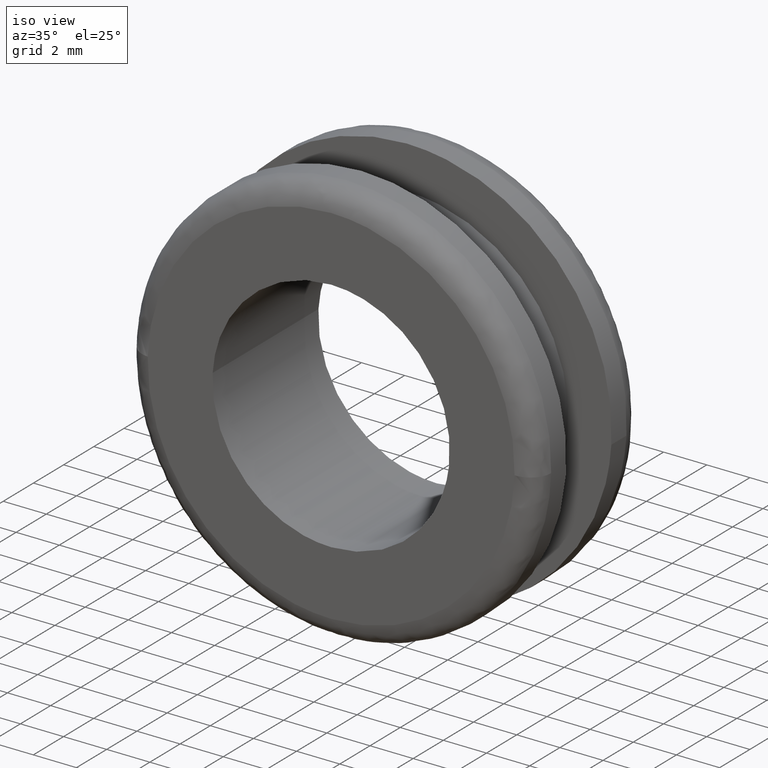
[diagram: clean part render]
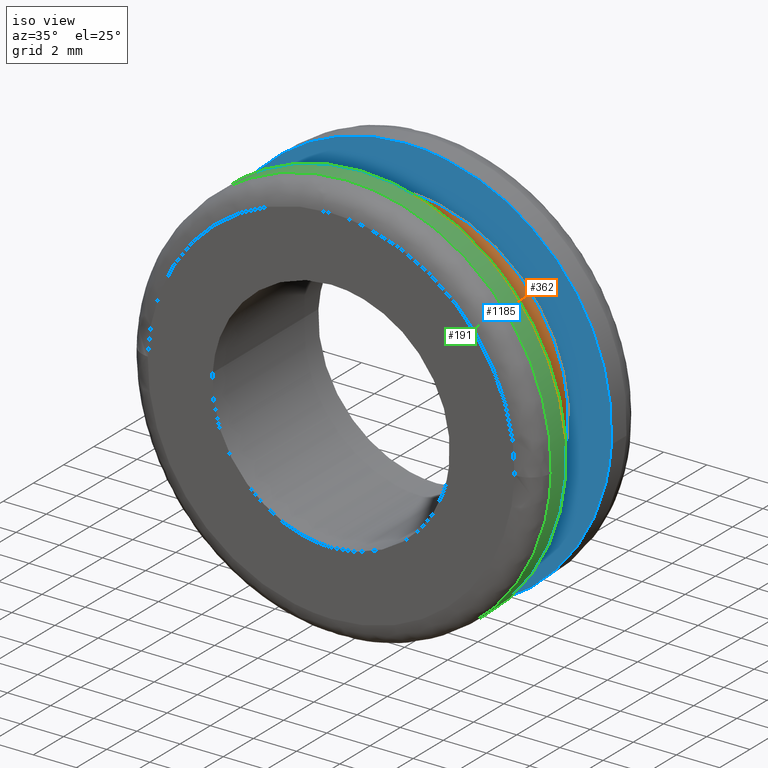
[diagram: same view with three faces highlighted in distinct colors, each labeled with its STEP entity id]
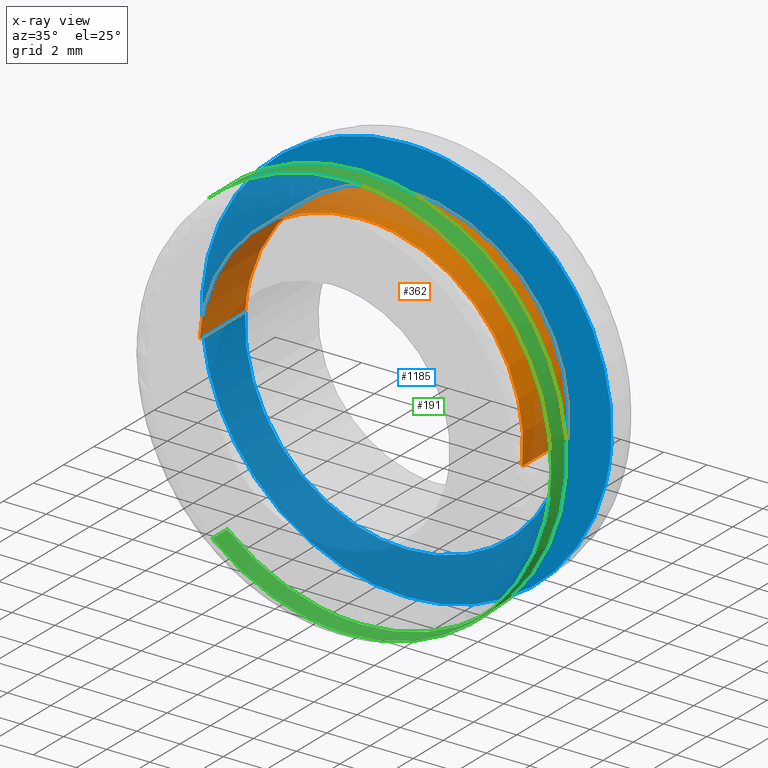
[diagram: x-ray of the same camera — body ghosted, the three highlighted faces saturated]
A machine part, iso view with three faces highlighted in distinct colors.
The next image is the same camera in x-ray (body ghosted, the three faces saturated) — at least one of them is partly hidden behind the body in this view.
Their STEP definitions:

[orange] entity #362 — the highlighted face is a freeform B-spline surface patch.
#260=CARTESIAN_POINT('',(7.447571447727496,5.075000000000002,-0.885256759925689));
#261=CARTESIAN_POINT('',(7.472907115864541,5.075000000000001,-0.672110464784833));
#262=CARTESIAN_POINT('',(7.486010988164000,5.075000000000001,-0.457864046511427));
#263=CARTESIAN_POINT('',(7.943875034675429,5.075000000000002,7.028146941652573));
#264=CARTESIAN_POINT('',(0.457864046511427,5.075000000000001,7.486010988164000));
#265=CARTESIAN_POINT('',(-7.028146941652573,5.075000000000002,7.943875034675429));
#266=CARTESIAN_POINT('',(-7.486010988164000,5.075000000000001,0.457864046511427));
#267=CARTESIAN_POINT('',(7.447571447727496,1.923125000000000,-0.885256759925689));
#268=CARTESIAN_POINT('',(7.472907115864541,1.923125000000000,-0.672110464784833));
#269=CARTESIAN_POINT('',(7.486010988164000,1.923125000000000,-0.457864046511427));
#270=CARTESIAN_POINT('',(7.943875034675429,1.923125000000000,7.028146941652573));
#271=CARTESIAN_POINT('',(0.457864046511427,1.923125000000000,7.486010988164000));
#272=CARTESIAN_POINT('',(-7.028146941652573,1.923125000000000,7.943875034675429));
#273=CARTESIAN_POINT('',(-7.486010988164000,1.923125000000000,0.457864046511427));
#281=(BOUNDED_SURFACE()B_SPLINE_SURFACE(2,1,((#260,#267),(#261,#268),(#262,#269),(#263,#270),(#264,#271),(#265,#272),(#266,#273)),.UNSPECIFIED.,.F.,.F.,.U.)B_SPLINE_SURFACE_WITH_KNOTS((3,2,2,3),(2,2),(0.0,0.497056274847715,12.923463146040559,25.349870017233410),(0.0,3.151875000000002),.UNSPECIFIED.)GEOMETRIC_REPRESENTATION_ITEM()RATIONAL_B_SPLINE_SURFACE(((0.977505800795127,0.977505800795127),(0.988284271247462,0.988284271247462),(1.0,1.0),(0.707106781186548,0.707106781186548),(1.0,1.0),(0.707106781186548,0.707106781186548),(1.0,1.0)))REPRESENTATION_ITEM('')SURFACE());
#282=CARTESIAN_POINT('',(7.447572368186221,1.999999999999989,-0.885249016135149));
#283=VERTEX_POINT('',#282);
#284=CARTESIAN_POINT('',(0.0,2.0,7.500000000000000));
#285=VERTEX_POINT('',#284);
#286=CARTESIAN_POINT('',(7.447572368186221,1.999999999999989,-0.885249016135149));
#287=CARTESIAN_POINT('',(7.500000000000001,2.0,-0.444176984561478));
#288=CARTESIAN_POINT('',(7.500000000000000,2.0,-1.928755E-016));
#289=CARTESIAN_POINT('',(7.500000000000000,2.0,7.500000000000000));
#290=CARTESIAN_POINT('',(0.0,2.0,7.500000000000000));
#298=(BOUNDED_CURVE()B_SPLINE_CURVE(2,(#286,#287,#288,#289,#290),.UNSPECIFIED.,.F.,.U.)B_SPLINE_CURVE_WITH_KNOTS((3,2,3),(0.229562649240826,0.250000000000000,0.500000000000000),.UNSPECIFIED.)CURVE()GEOMETRIC_REPRESENTATION_ITEM()RATIONAL_B_SPLINE_CURVE((0.956027098616722,0.976056154208503,1.0,0.707106781186547,1.0))REPRESENTATION_ITEM(''));
#299=EDGE_CURVE('',#283,#285,#298,.T.);
#300=ORIENTED_EDGE('',*,*,#299,.F.);
#301=CARTESIAN_POINT('',(7.447572356828653,5.0,-0.885249111686859));
#302=VERTEX_POINT('',#301);
#303=CARTESIAN_POINT('',(7.447572356828653,5.0,-0.885249111686859));
#304=CARTESIAN_POINT('',(7.447572368186221,1.999999999999989,-0.885249016135149));
#305=QUASI_UNIFORM_CURVE('',1,(#303,#304),.UNSPECIFIED.,.F.,.U.);
#306=EDGE_CURVE('',#302,#283,#305,.T.);
#307=ORIENTED_EDGE('',*,*,#306,.F.);
#308=CARTESIAN_POINT('',(0.0,5.0,7.500000000000000));
#309=VERTEX_POINT('',#308);
#310=CARTESIAN_POINT('',(7.447572356828653,5.0,-0.885249111686859));
#311=CARTESIAN_POINT('',(7.500000000000001,5.0,-0.444177032842398));
#312=CARTESIAN_POINT('',(7.500000000000000,5.0,-1.928755E-016));
#313=CARTESIAN_POINT('',(7.500000000000000,4.999999999999999,7.500000000000000));
#314=CARTESIAN_POINT('',(0.0,5.0,7.500000000000000));
#322=(BOUNDED_CURVE()B_SPLINE_CURVE(2,(#310,#311,#312,#313,#314),.UNSPECIFIED.,.F.,.U.)B_SPLINE_CURVE_WITH_KNOTS((3,2,3),(0.229562647072528,0.250000000000000,0.500000000000000),.UNSPECIFIED.)CURVE()GEOMETRIC_REPRESENTATION_ITEM()RATIONAL_B_SPLINE_CURVE((0.956027094366763,0.976056151668185,1.0,0.707106781186547,1.0))REPRESENTATION_ITEM(''));
#323=EDGE_CURVE('',#302,#309,#322,.T.);
#324=ORIENTED_EDGE('',*,*,#323,.T.);
#325=CARTESIAN_POINT('',(-7.486011239723709,5.0,0.457859933509482));
#326=VERTEX_POINT('',#325);
#327=CARTESIAN_POINT('',(0.0,5.0,7.500000000000000));
#328=CARTESIAN_POINT('',(-7.055299385393349,4.999999999999999,7.500000000000000));
#329=CARTESIAN_POINT('',(-7.486011239723709,5.000000000000001,0.457859933509481));
#337=(BOUNDED_CURVE()B_SPLINE_CURVE(2,(#327,#328,#329),.UNSPECIFIED.,.F.,.U.)B_SPLINE_CURVE_WITH_KNOTS((3,3),(0.500000000000000,0.739333057043503),.UNSPECIFIED.)CURVE()GEOMETRIC_REPRESENTATION_ITEM()RATIONAL_B_SPLINE_CURVE((1.0,0.719603882216259,0.976072244851022))REPRESENTATION_ITEM(''));
#338=EDGE_CURVE('',#309,#326,#337,.T.);
#339=ORIENTED_EDGE('',*,*,#338,.T.);
#340=CARTESIAN_POINT('',(-7.486011242863441,2.000000000000035,0.457859882174362));
#341=VERTEX_POINT('',#340);
#342=CARTESIAN_POINT('',(-7.486011239723709,5.0,0.457859933509482));
#343=CARTESIAN_POINT('',(-7.486011242863441,2.000000000000035,0.457859882174362));
#344=QUASI_UNIFORM_CURVE('',1,(#342,#343),.UNSPECIFIED.,.F.,.U.);
#345=EDGE_CURVE('',#326,#341,#344,.T.);
#346=ORIENTED_EDGE('',*,*,#345,.T.);
#347=CARTESIAN_POINT('',(0.0,2.0,7.500000000000000));
#348=CARTESIAN_POINT('',(-7.055299433865282,2.0,7.500000000000001));
#349=CARTESIAN_POINT('',(-7.486011242863442,2.000000000000035,0.457859882174362));
#357=(BOUNDED_CURVE()B_SPLINE_CURVE(2,(#347,#348,#349),.UNSPECIFIED.,.F.,.U.)B_SPLINE_CURVE_WITH_KNOTS((3,3),(0.500000000000000,0.739333058226738),.UNSPECIFIED.)CURVE()GEOMETRIC_REPRESENTATION_ITEM()RATIONAL_B_SPLINE_CURVE((1.0,0.719603880830012,0.976072247386922))REPRESENTATION_ITEM(''));
#358=EDGE_CURVE('',#285,#341,#357,.T.);
#359=ORIENTED_EDGE('',*,*,#358,.F.);
#360=EDGE_LOOP('',(#300,#307,#324,#339,#346,#359));
#361=FACE_OUTER_BOUND('',#360,.T.);
#362=ADVANCED_FACE('',(#361),#281,.T.);

[blue] entity #1185 — the highlighted face is a freeform B-spline surface patch.
#301=CARTESIAN_POINT('',(7.447572356828653,5.0,-0.885249111686859));
#302=VERTEX_POINT('',#301);
#308=CARTESIAN_POINT('',(0.0,5.0,7.500000000000000));
#309=VERTEX_POINT('',#308);
#310=CARTESIAN_POINT('',(7.447572356828653,5.0,-0.885249111686859));
#311=CARTESIAN_POINT('',(7.500000000000001,5.0,-0.444177032842398));
#312=CARTESIAN_POINT('',(7.500000000000000,5.0,-1.928755E-016));
#313=CARTESIAN_POINT('',(7.500000000000000,4.999999999999999,7.500000000000000));
#314=CARTESIAN_POINT('',(0.0,5.0,7.500000000000000));
#322=(BOUNDED_CURVE()B_SPLINE_CURVE(2,(#310,#311,#312,#313,#314),.UNSPECIFIED.,.F.,.U.)B_SPLINE_CURVE_WITH_KNOTS((3,2,3),(0.229562647072528,0.250000000000000,0.500000000000000),.UNSPECIFIED.)CURVE()GEOMETRIC_REPRESENTATION_ITEM()RATIONAL_B_SPLINE_CURVE((0.956027094366763,0.976056151668185,1.0,0.707106781186547,1.0))REPRESENTATION_ITEM(''));
#323=EDGE_CURVE('',#302,#309,#322,.T.);
#325=CARTESIAN_POINT('',(-7.486011239723709,5.0,0.457859933509482));
#326=VERTEX_POINT('',#325);
#327=CARTESIAN_POINT('',(0.0,5.0,7.500000000000000));
#328=CARTESIAN_POINT('',(-7.055299385393349,4.999999999999999,7.500000000000000));
#329=CARTESIAN_POINT('',(-7.486011239723709,5.000000000000001,0.457859933509481));
#337=(BOUNDED_CURVE()B_SPLINE_CURVE(2,(#327,#328,#329),.UNSPECIFIED.,.F.,.U.)B_SPLINE_CURVE_WITH_KNOTS((3,3),(0.500000000000000,0.739333057043503),.UNSPECIFIED.)CURVE()GEOMETRIC_REPRESENTATION_ITEM()RATIONAL_B_SPLINE_CURVE((1.0,0.719603882216259,0.976072244851022))REPRESENTATION_ITEM(''));
#338=EDGE_CURVE('',#309,#326,#337,.T.);
#412=CARTESIAN_POINT('',(0.0,5.0,-7.500000000000000));
#413=VERTEX_POINT('',#412);
#414=CARTESIAN_POINT('',(-7.486011239723709,5.000000000000001,0.457859933509481));
#415=CARTESIAN_POINT('',(-7.500000000000000,5.0,0.229143662472302));
#416=CARTESIAN_POINT('',(-7.500000000000000,5.0,-1.928755E-016));
#417=CARTESIAN_POINT('',(-7.500000000000000,4.999999999999999,-7.500000000000000));
#418=CARTESIAN_POINT('',(0.0,5.0,-7.500000000000000));
#426=(BOUNDED_CURVE()B_SPLINE_CURVE(2,(#414,#415,#416,#417,#418),.UNSPECIFIED.,.F.,.U.)B_SPLINE_CURVE_WITH_KNOTS((3,2,3),(0.739333057043503,0.750000000000000,1.0),.UNSPECIFIED.)CURVE()GEOMETRIC_REPRESENTATION_ITEM()RATIONAL_B_SPLINE_CURVE((0.976072244851022,0.987502898970289,1.0,0.707106781186547,1.0))REPRESENTATION_ITEM(''));
#427=EDGE_CURVE('',#326,#413,#426,.T.);
#429=CARTESIAN_POINT('',(0.0,5.0,-7.500000000000000));
#430=CARTESIAN_POINT('',(6.661315833585835,5.0,-7.499999999999999));
#431=CARTESIAN_POINT('',(7.447572356828653,5.0,-0.885249111686859));
#439=(BOUNDED_CURVE()B_SPLINE_CURVE(2,(#429,#430,#431),.UNSPECIFIED.,.F.,.U.)B_SPLINE_CURVE_WITH_KNOTS((3,3),(0.0,0.229562647072528),.UNSPECIFIED.)CURVE()GEOMETRIC_REPRESENTATION_ITEM()RATIONAL_B_SPLINE_CURVE((1.0,0.731050629518363,0.956027094366763))REPRESENTATION_ITEM(''));
#440=EDGE_CURVE('',#413,#302,#439,.T.);
#472=CARTESIAN_POINT('',(3.340365493579402,5.0,8.893365975224027));
#473=VERTEX_POINT('',#472);
#474=CARTESIAN_POINT('',(0.0,5.0,9.500000000000000));
#475=VERTEX_POINT('',#474);
#476=CARTESIAN_POINT('',(3.340365493579401,5.000000000000001,8.893365975224027));
#477=CARTESIAN_POINT('',(1.725267263846778,5.000000000000001,9.500000000000000));
#478=CARTESIAN_POINT('',(0.0,5.0,9.500000000000000));
#486=(BOUNDED_CURVE()B_SPLINE_CURVE(2,(#476,#477,#478),.UNSPECIFIED.,.F.,.U.)B_SPLINE_CURVE_WITH_KNOTS((3,3),(0.440284264374492,0.500000000000000),.UNSPECIFIED.)CURVE()GEOMETRIC_REPRESENTATION_ITEM()RATIONAL_B_SPLINE_CURVE((0.893499669027772,0.930038663915327,1.0))REPRESENTATION_ITEM(''));
#487=EDGE_CURVE('',#473,#475,#486,.T.);
#571=CARTESIAN_POINT('',(9.482280983435548,5.000000000000147,-0.579954611270536));
#572=VERTEX_POINT('',#571);
#578=CARTESIAN_POINT('',(0.0,5.0,-9.500000000000000));
#579=VERTEX_POINT('',#578);
#580=CARTESIAN_POINT('',(0.0,5.0,-9.500000000000000));
#581=CARTESIAN_POINT('',(8.936713786581557,5.0,-9.499999999999998));
#582=CARTESIAN_POINT('',(9.482280983435548,5.000000000000147,-0.579954611270536));
#590=(BOUNDED_CURVE()B_SPLINE_CURVE(2,(#580,#581,#582),.UNSPECIFIED.,.F.,.U.)B_SPLINE_CURVE_WITH_KNOTS((3,3),(0.0,0.239333080781329),.UNSPECIFIED.)CURVE()GEOMETRIC_REPRESENTATION_ITEM()RATIONAL_B_SPLINE_CURVE((1.0,0.719603854405666,0.976072295725749))REPRESENTATION_ITEM(''));
#591=EDGE_CURVE('',#579,#572,#590,.T.);
#593=CARTESIAN_POINT('',(0.0,5.0,9.500000000000000));
#594=CARTESIAN_POINT('',(-9.500000000000000,5.000000000000001,9.500000000000000));
#595=CARTESIAN_POINT('',(-9.500000000000000,5.0,-1.928755E-016));
#596=CARTESIAN_POINT('',(-9.500000000000000,5.000000000000001,-9.500000000000000));
#597=CARTESIAN_POINT('',(0.0,5.0,-9.500000000000000));
#605=(BOUNDED_CURVE()B_SPLINE_CURVE(2,(#593,#594,#595,#596,#597),.UNSPECIFIED.,.F.,.U.)B_SPLINE_CURVE_WITH_KNOTS((3,2,3),(0.500000000000000,0.750000000000000,1.0),.UNSPECIFIED.)CURVE()GEOMETRIC_REPRESENTATION_ITEM()RATIONAL_B_SPLINE_CURVE((1.0,0.707106781186548,1.0,0.707106781186548,1.0))REPRESENTATION_ITEM(''));
#606=EDGE_CURVE('',#475,#579,#605,.T.);
#625=CARTESIAN_POINT('',(9.482280983435548,5.000000000000147,-0.579954611270536));
#626=CARTESIAN_POINT('',(9.500000000000000,4.999999999999999,-0.290247985048717));
#627=CARTESIAN_POINT('',(9.500000000000000,5.0,-1.928755E-016));
#628=CARTESIAN_POINT('',(9.500000000000000,4.999999999999999,6.579795318667948));
#629=CARTESIAN_POINT('',(3.340365493579401,5.000000000000001,8.893365975224027));
#637=(BOUNDED_CURVE()B_SPLINE_CURVE(2,(#625,#626,#627,#628,#629),.UNSPECIFIED.,.F.,.U.)B_SPLINE_CURVE_WITH_KNOTS((3,2,3),(0.239333080781329,0.250000000000000,0.440284264374492),.UNSPECIFIED.)CURVE()GEOMETRIC_REPRESENTATION_ITEM()RATIONAL_B_SPLINE_CURVE((0.976072295725749,0.987502926780882,1.0,0.777068117271220,0.893499669027772))REPRESENTATION_ITEM(''));
#638=EDGE_CURVE('',#572,#473,#637,.T.);
#1168=CARTESIAN_POINT('',(-10.448967283695190,5.0,-10.449049963174311));
#1169=CARTESIAN_POINT('',(-10.448967283695190,5.0,10.449050472794029));
#1170=CARTESIAN_POINT('',(10.447312548487631,5.0,-10.449049963174311));
#1171=CARTESIAN_POINT('',(10.447312548487631,5.0,10.449050472794029));
#1172=B_SPLINE_SURFACE_WITH_KNOTS('',1,1,((#1168,#1170),(#1169,#1171)),.UNSPECIFIED.,.F.,.F.,.U.,(2,2),(2,2),(0.0,20.898100435968342),(0.0,20.896279832182820),.UNSPECIFIED.);
#1173=ORIENTED_EDGE('',*,*,#591,.T.);
#1174=ORIENTED_EDGE('',*,*,#638,.T.);
#1175=ORIENTED_EDGE('',*,*,#487,.T.);
#1176=ORIENTED_EDGE('',*,*,#606,.T.);
#1177=EDGE_LOOP('',(#1173,#1174,#1175,#1176));
#1178=FACE_OUTER_BOUND('',#1177,.T.);
#1179=ORIENTED_EDGE('',*,*,#338,.F.);
#1180=ORIENTED_EDGE('',*,*,#323,.F.);
#1181=ORIENTED_EDGE('',*,*,#440,.F.);
#1182=ORIENTED_EDGE('',*,*,#427,.F.);
#1183=EDGE_LOOP('',(#1179,#1180,#1181,#1182));
#1184=FACE_BOUND('',#1183,.T.);
#1185=ADVANCED_FACE('',(#1178,#1184),#1172,.F.);

[green] entity #191 — the highlighted face is a freeform B-spline surface patch.
#44=CARTESIAN_POINT('',(-6.216226741525695,2.025000000001941,-7.183907369805153));
#45=CARTESIAN_POINT('',(0.180983150795311,2.025000000001941,-12.719405693592298));
#46=CARTESIAN_POINT('',(6.418106972348771,2.025000000001940,-7.004134699696175));
#47=CARTESIAN_POINT('',(13.422241672044946,2.025000000001941,-0.586027727347404));
#48=CARTESIAN_POINT('',(7.004134699696175,2.025000000001940,6.418106972348771));
#49=CARTESIAN_POINT('',(0.586027727347404,2.025000000001941,13.422241672044946));
#50=CARTESIAN_POINT('',(-6.418106972348771,2.025000000001940,7.004134699696175));
#51=CARTESIAN_POINT('',(-6.216226741525695,0.974374999920411,-7.183907369805153));
#52=CARTESIAN_POINT('',(0.180983150795311,0.974374999920411,-12.719405693592298));
#53=CARTESIAN_POINT('',(6.418106972348771,0.974374999920411,-7.004134699696175));
#54=CARTESIAN_POINT('',(13.422241672044946,0.974374999920411,-0.586027727347404));
#55=CARTESIAN_POINT('',(7.004134699696175,0.974374999920411,6.418106972348771));
#56=CARTESIAN_POINT('',(0.586027727347404,0.974374999920411,13.422241672044946));
#57=CARTESIAN_POINT('',(-6.418106972348771,0.974374999920411,7.004134699696175));
#65=(BOUNDED_SURFACE()B_SPLINE_SURFACE(2,1,((#44,#51),(#45,#52),(#46,#53),(#47,#54),(#48,#55),(#49,#56),(#50,#57)),.UNSPECIFIED.,.F.,.F.,.U.)B_SPLINE_SURFACE_WITH_KNOTS((3,2,2,3),(2,2),(0.0,14.480906140563400,30.221021510741011,45.961136880918623),(0.0,1.0),.UNSPECIFIED.)GEOMETRIC_REPRESENTATION_ITEM()RATIONAL_B_SPLINE_SURFACE(((0.956886118190660,0.956886118190660),(0.730538238691624,0.730538238691624),(1.0,1.0),(0.707106781186548,0.707106781186548),(1.0,1.0),(0.707106781186548,0.707106781186548),(1.0,1.0)))REPRESENTATION_ITEM('')SURFACE());
#66=CARTESIAN_POINT('',(-6.216226427721479,2.000000000000012,-7.183907641339557));
#67=VERTEX_POINT('',#66);
#68=CARTESIAN_POINT('',(0.0,2.0,-9.500000000000000));
#69=VERTEX_POINT('',#68);
#70=CARTESIAN_POINT('',(-6.216226427721479,2.000000000000012,-7.183907641339557));
#71=CARTESIAN_POINT('',(-3.539587271195946,2.000000000000000,-9.500000000000002));
#72=CARTESIAN_POINT('',(0.0,2.0,-9.500000000000000));
#80=(BOUNDED_CURVE()B_SPLINE_CURVE(2,(#70,#71,#72),.UNSPECIFIED.,.F.,.U.)B_SPLINE_CURVE_WITH_KNOTS((3,3),(0.885882133147832,1.0),.UNSPECIFIED.)CURVE()GEOMETRIC_REPRESENTATION_ITEM()RATIONAL_B_SPLINE_CURVE((0.854663299575205,0.866302602614174,1.0))REPRESENTATION_ITEM(''));
#81=EDGE_CURVE('',#67,#69,#80,.T.);
#82=ORIENTED_EDGE('',*,*,#81,.T.);
#83=CARTESIAN_POINT('',(0.0,2.0,9.500000000000000));
#84=VERTEX_POINT('',#83);
#85=CARTESIAN_POINT('',(0.0,2.0,-9.500000000000000));
#86=CARTESIAN_POINT('',(9.500000000000000,2.000000000000000,-9.500000000000000));
#87=CARTESIAN_POINT('',(9.500000000000000,2.0,-1.928755E-016));
#88=CARTESIAN_POINT('',(9.500000000000000,2.000000000000000,9.500000000000000));
#89=CARTESIAN_POINT('',(0.0,2.0,9.500000000000000));
#97=(BOUNDED_CURVE()B_SPLINE_CURVE(2,(#85,#86,#87,#88,#89),.UNSPECIFIED.,.F.,.U.)B_SPLINE_CURVE_WITH_KNOTS((3,2,3),(0.0,0.250000000000000,0.500000000000000),.UNSPECIFIED.)CURVE()GEOMETRIC_REPRESENTATION_ITEM()RATIONAL_B_SPLINE_CURVE((1.0,0.707106781186548,1.0,0.707106781186548,1.0))REPRESENTATION_ITEM(''));
#98=EDGE_CURVE('',#69,#84,#97,.T.);
#99=ORIENTED_EDGE('',*,*,#98,.T.);
#100=CARTESIAN_POINT('',(-6.418106596069949,2.0,7.004135044492156));
#101=VERTEX_POINT('',#100);
#102=CARTESIAN_POINT('',(0.0,2.0,9.500000000000000));
#103=CARTESIAN_POINT('',(-3.694347365060339,2.000000000000000,9.500000000000000));
#104=CARTESIAN_POINT('',(-6.418106596069949,2.000000000000000,7.004135044492156));
#112=(BOUNDED_CURVE()B_SPLINE_CURVE(2,(#102,#103,#104),.UNSPECIFIED.,.F.,.U.)B_SPLINE_CURVE_WITH_KNOTS((3,3),(0.500000000000000,0.618415192864190),.UNSPECIFIED.)CURVE()GEOMETRIC_REPRESENTATION_ITEM()RATIONAL_B_SPLINE_CURVE((1.0,0.861267972022367,0.853959782840026))REPRESENTATION_ITEM(''));
#113=EDGE_CURVE('',#84,#101,#112,.T.);
#114=ORIENTED_EDGE('',*,*,#113,.T.);
#115=CARTESIAN_POINT('',(-6.418106578924638,0.999999999979102,7.004135060202874));
#116=VERTEX_POINT('',#115);
#117=CARTESIAN_POINT('',(-6.418106596069949,2.0,7.004135044492156));
#118=CARTESIAN_POINT('',(-6.418106578924638,0.999999999979102,7.004135060202874));
#119=QUASI_UNIFORM_CURVE('',1,(#117,#118),.UNSPECIFIED.,.F.,.U.);
#120=EDGE_CURVE('',#101,#116,#119,.T.);
#121=ORIENTED_EDGE('',*,*,#120,.T.);
#122=CARTESIAN_POINT('',(0.0,1.0,9.500000000000000));
#123=VERTEX_POINT('',#122);
#124=CARTESIAN_POINT('',(0.0,1.0,9.500000000000000));
#125=CARTESIAN_POINT('',(-3.694347338288662,1.0,9.499999999999998));
#126=CARTESIAN_POINT('',(-6.418106578924638,0.999999999979102,7.004135060202874));
#134=(BOUNDED_CURVE()B_SPLINE_CURVE(2,(#124,#125,#126),.UNSPECIFIED.,.F.,.U.)B_SPLINE_CURVE_WITH_KNOTS((3,3),(0.500000000000000,0.618415192125123),.UNSPECIFIED.)CURVE()GEOMETRIC_REPRESENTATION_ITEM()RATIONAL_B_SPLINE_CURVE((1.0,0.861267972888237,0.853959782931252))REPRESENTATION_ITEM(''));
#135=EDGE_CURVE('',#123,#116,#134,.T.);
#136=ORIENTED_EDGE('',*,*,#135,.F.);
#137=CARTESIAN_POINT('',(9.496999798191336,0.999999999922399,-0.238735906712228));
#138=VERTEX_POINT('',#137);
#139=CARTESIAN_POINT('',(9.496999798191336,0.999999999922399,-0.238735906712228));
#140=CARTESIAN_POINT('',(9.500000000000000,1.0,-0.119386805172629));
#141=CARTESIAN_POINT('',(9.500000000000000,1.0,-1.928755E-016));
#142=CARTESIAN_POINT('',(9.500000000000000,1.0,9.500000000000000));
#143=CARTESIAN_POINT('',(0.0,1.0,9.500000000000000));
#151=(BOUNDED_CURVE()B_SPLINE_CURVE(2,(#139,#140,#141,#142,#143),.UNSPECIFIED.,.F.,.U.)B_SPLINE_CURVE_WITH_KNOTS((3,2,3),(0.245579891769788,0.250000000000000,0.500000000000000),.UNSPECIFIED.)CURVE()GEOMETRIC_REPRESENTATION_ITEM()RATIONAL_B_SPLINE_CURVE((0.989826157681533,0.994821521091798,1.0,0.707106781186548,1.0))REPRESENTATION_ITEM(''));
#152=EDGE_CURVE('',#138,#123,#151,.T.);
#153=ORIENTED_EDGE('',*,*,#152,.F.);
#154=CARTESIAN_POINT('',(0.0,1.0,-9.500000000000000));
#155=VERTEX_POINT('',#154);
#156=CARTESIAN_POINT('',(0.0,1.0,-9.500000000000000));
#157=CARTESIAN_POINT('',(9.264189823715146,1.0,-9.500000000000002));
#158=CARTESIAN_POINT('',(9.496999798191336,0.999999999922399,-0.238735906712228));
#166=(BOUNDED_CURVE()B_SPLINE_CURVE(2,(#156,#157,#158),.UNSPECIFIED.,.F.,.U.)B_SPLINE_CURVE_WITH_KNOTS((3,3),(0.0,0.245579891769788),.UNSPECIFIED.)CURVE()GEOMETRIC_REPRESENTATION_ITEM()RATIONAL_B_SPLINE_CURVE((1.0,0.712285260094750,0.989826157681533))REPRESENTATION_ITEM(''));
#167=EDGE_CURVE('',#155,#138,#166,.T.);
#168=ORIENTED_EDGE('',*,*,#167,.F.);
#169=CARTESIAN_POINT('',(-6.216226431502614,1.0,-7.183907638067746));
#170=VERTEX_POINT('',#169);
#171=CARTESIAN_POINT('',(-6.216226431502614,1.0,-7.183907638067746));
#172=CARTESIAN_POINT('',(-3.539587276890254,1.0,-9.500000000000002));
#173=CARTESIAN_POINT('',(0.0,1.0,-9.500000000000000));
#181=(BOUNDED_CURVE()B_SPLINE_CURVE(2,(#171,#172,#173),.UNSPECIFIED.,.F.,.U.)B_SPLINE_CURVE_WITH_KNOTS((3,3),(0.885882132988790,1.0),.UNSPECIFIED.)CURVE()GEOMETRIC_REPRESENTATION_ITEM()RATIONAL_B_SPLINE_CURVE((0.854663299542762,0.866302602427844,1.0))REPRESENTATION_ITEM(''));
#182=EDGE_CURVE('',#170,#155,#181,.T.);
#183=ORIENTED_EDGE('',*,*,#182,.F.);
#184=CARTESIAN_POINT('',(-6.216226427721479,2.000000000000012,-7.183907641339557));
#185=CARTESIAN_POINT('',(-6.216226431502614,1.0,-7.183907638067746));
#186=QUASI_UNIFORM_CURVE('',1,(#184,#185),.UNSPECIFIED.,.F.,.U.);
#187=EDGE_CURVE('',#67,#170,#186,.T.);
#188=ORIENTED_EDGE('',*,*,#187,.F.);
#189=EDGE_LOOP('',(#82,#99,#114,#121,#136,#153,#168,#183,#188));
#190=FACE_OUTER_BOUND('',#189,.T.);
#191=ADVANCED_FACE('',(#190),#65,.T.);